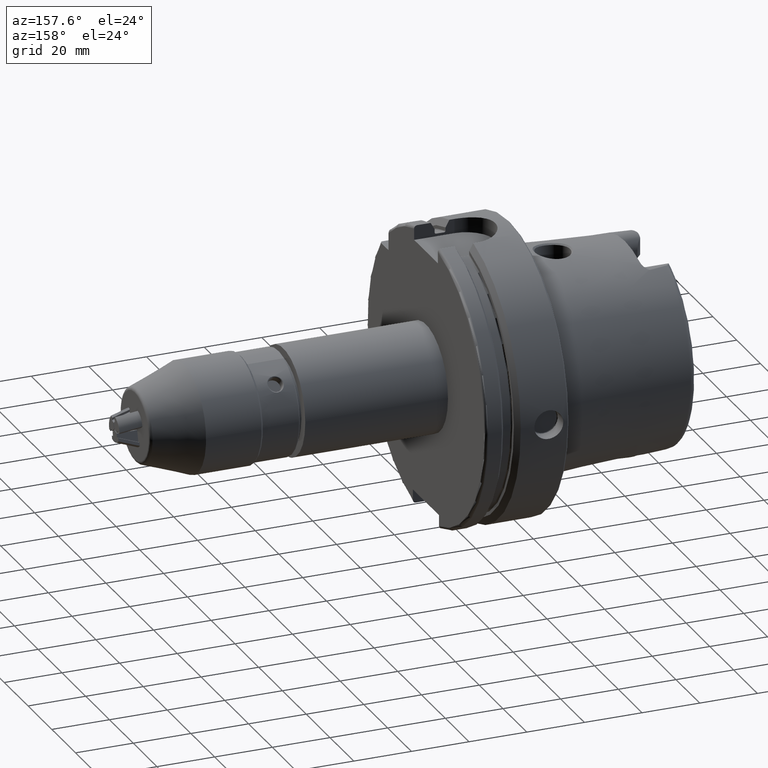
[diagram: clean part render]
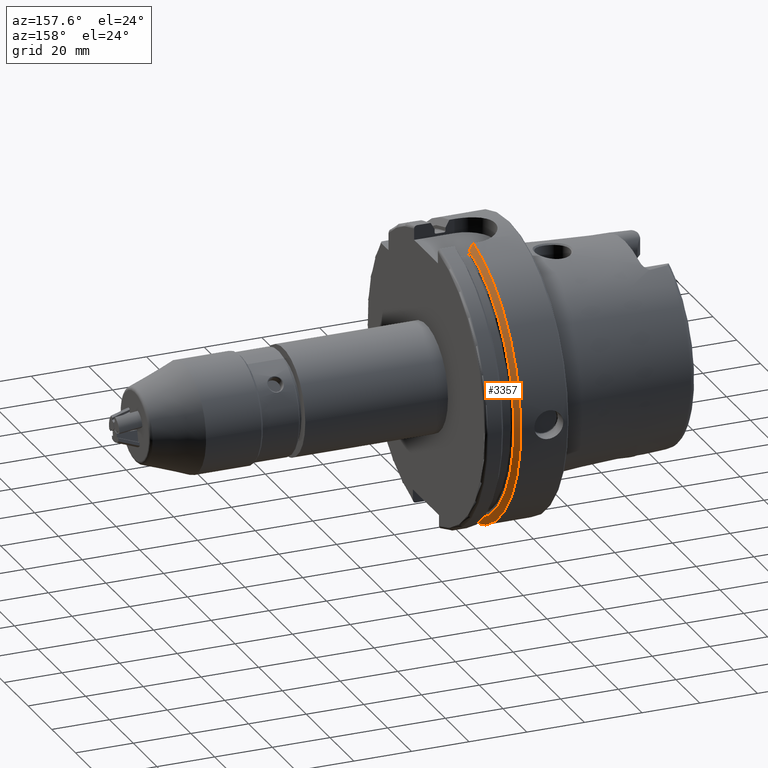
[diagram: same view with one face highlighted and labeled with its STEP entity id]
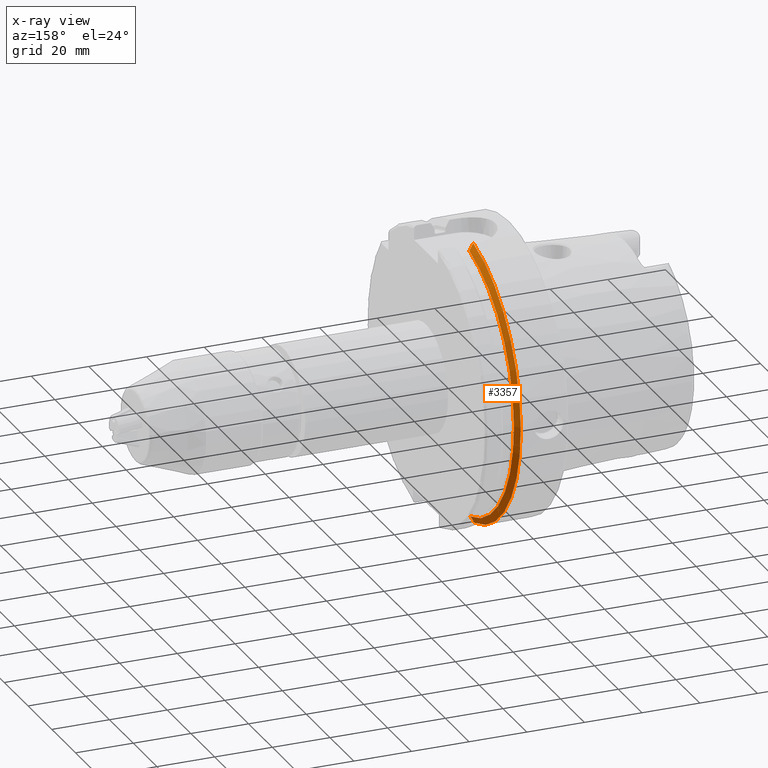
[diagram: x-ray of the same camera — body ghosted, the highlighted face saturated]
A machine part, auxiliary view. The second image highlights one B-rep face of the part: STEP entity #3357.
The next image is the same camera in x-ray: the body ghosted, the highlighted face saturated — about 1% of this face is hidden behind the body in this view.
In plain terms, the highlighted conical surface has half-angle 60 deg.
Its self-contained STEP definition (entity closure, byte-faithful):
#516=(
BOUNDED_CURVE()
B_SPLINE_CURVE(2,(#6322,#6323,#6324),.UNSPECIFIED.,.F.,.F.)
B_SPLINE_CURVE_WITH_KNOTS((3,3),(0.,0.282923490805558),.UNSPECIFIED.)
CURVE()
GEOMETRIC_REPRESENTATION_ITEM()
RATIONAL_B_SPLINE_CURVE((1.,1.00031934109636,1.))
REPRESENTATION_ITEM('')
);
#521=(
BOUNDED_CURVE()
B_SPLINE_CURVE(2,(#6500,#6501,#6502),.UNSPECIFIED.,.F.,.F.)
B_SPLINE_CURVE_WITH_KNOTS((3,3),(0.,0.281931851964124),.UNSPECIFIED.)
CURVE()
GEOMETRIC_REPRESENTATION_ITEM()
RATIONAL_B_SPLINE_CURVE((1.,1.00031639798907,1.))
REPRESENTATION_ITEM('')
);
#615=CONICAL_SURFACE('',#3827,48.7987976320958,1.0471975511966);
#787=FACE_OUTER_BOUND('',#974,.T.);
#974=EDGE_LOOP('',(#2720,#2721,#2722,#2723));
#1498=CIRCLE('',#3773,50.);
#1525=CIRCLE('',#3826,47.5975952641917);
#1750=VERTEX_POINT('',#6198);
#1751=VERTEX_POINT('',#6200);
#1772=VERTEX_POINT('',#6321);
#1802=VERTEX_POINT('',#6496);
#2068=EDGE_CURVE('',#1751,#1750,#1498,.T.);
#2100=EDGE_CURVE('',#1772,#1751,#516,.T.);
#2147=EDGE_CURVE('',#1772,#1802,#1525,.T.);
#2149=EDGE_CURVE('',#1750,#1802,#521,.T.);
#2720=ORIENTED_EDGE('',*,*,#2100,.T.);
#2721=ORIENTED_EDGE('',*,*,#2068,.T.);
#2722=ORIENTED_EDGE('',*,*,#2149,.T.);
#2723=ORIENTED_EDGE('',*,*,#2147,.F.);
#3357=ADVANCED_FACE('',(#787),#615,.T.);
#3773=AXIS2_PLACEMENT_3D('',#6201,#4363,#4364);
#3826=AXIS2_PLACEMENT_3D('',#6497,#4500,#4501);
#3827=AXIS2_PLACEMENT_3D('',#6499,#4503,#4504);
#4363=DIRECTION('center_axis',(1.,0.,0.));
#4364=DIRECTION('ref_axis',(0.,0.,-1.));
#4500=DIRECTION('center_axis',(1.,0.,0.));
#4501=DIRECTION('ref_axis',(0.,0.,-1.));
#4503=DIRECTION('center_axis',(-1.,0.,0.));
#4504=DIRECTION('ref_axis',(0.,1.,0.));
#6198=CARTESIAN_POINT('',(16.7379709790786,10.,48.9897948556636));
#6200=CARTESIAN_POINT('',(16.7379709790786,11.,-48.7749935930288));
#6201=CARTESIAN_POINT('Origin',(16.7379709790786,0.,0.));
#6321=CARTESIAN_POINT('',(18.125,11.,-46.3090819919139));
#6322=CARTESIAN_POINT('Ctrl Pts',(18.125,11.,-46.3090819919139));
#6323=CARTESIAN_POINT('Ctrl Pts',(17.4494711035784,11.,-47.5116880808765));
#6324=CARTESIAN_POINT('Ctrl Pts',(16.7379709790786,11.,-48.7749935930288));
#6496=CARTESIAN_POINT('',(18.125,10.,46.5352670018536));
#6497=CARTESIAN_POINT('Origin',(18.125,0.,0.));
#6499=CARTESIAN_POINT('Origin',(17.4314854895393,0.,0.));
#6500=CARTESIAN_POINT('Ctrl Pts',(16.7379709790786,10.,48.9897948556636));
#6501=CARTESIAN_POINT('Ctrl Pts',(17.4493054275198,10.,47.7323213252028));
#6502=CARTESIAN_POINT('Ctrl Pts',(18.125,10.,46.5352670018536));